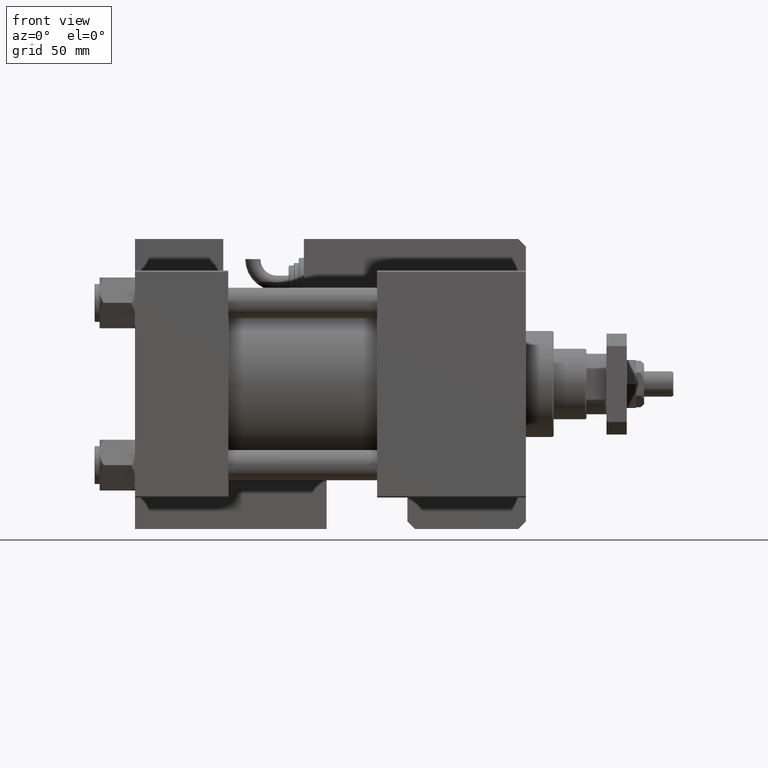
[diagram: clean part render]
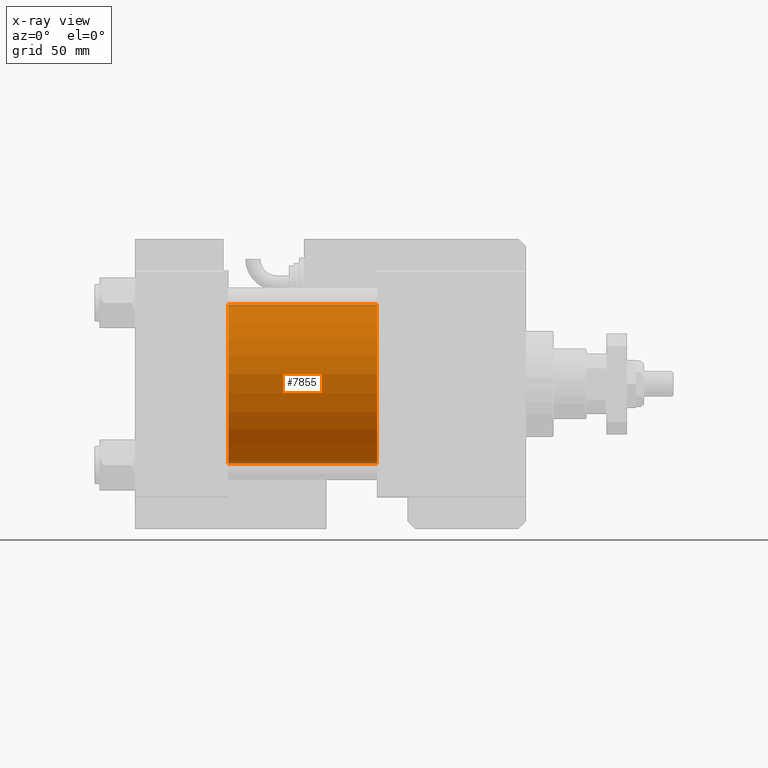
[diagram: x-ray — body ghosted, one internal face saturated and labeled with its STEP entity id]
A machine part, front view, then the same camera in x-ray: the body is ghosted and one INTERNAL B-rep face — a face not visible from any outside direction — is saturated and labeled: STEP entity #7855.
In plain terms, the highlighted cylindrical surface (partial cylindrical patch) has radius 31.5 mm, axis along (-1, -0, -0).
Its self-contained STEP definition (entity closure, byte-faithful):
#4995 = CARTESIAN_POINT ( 'NONE',  ( 96.00000000000000000, 1.255552203348951850E-15, -31.50000000000000000 ) ) ;
#5355 = DIRECTION ( 'NONE',  ( -1.000000000000000000, -0.000000000000000000, -0.000000000000000000 ) ) ;
#5761 = VERTEX_POINT ( 'NONE', #11695 ) ;
#6424 = ORIENTED_EDGE ( 'NONE', *, *, #13317, .T. ) ;
#6811 = AXIS2_PLACEMENT_3D ( 'NONE', #34180, #55706, #43519 ) ;
#7855 = ADVANCED_FACE ( 'NONE', ( #35309 ), #34753, .F. ) ;
#8113 = DIRECTION ( 'NONE',  ( 1.000000000000000000, 0.000000000000000000, 0.000000000000000000 ) ) ;
#8156 = EDGE_CURVE ( 'NONE', #53467, #25747, #49170, .T. ) ;
#8751 = CARTESIAN_POINT ( 'NONE',  ( 37.00000000000000000, -2.602085213965210642E-15, 31.50000000000000000 ) ) ;
#10133 = DIRECTION ( 'NONE',  ( -1.000000000000000000, -0.000000000000000000, -0.000000000000000000 ) ) ;
#11695 = CARTESIAN_POINT ( 'NONE',  ( 37.00000000000000000, 1.255552203348951850E-15, -31.50000000000000000 ) ) ;
#12049 = ORIENTED_EDGE ( 'NONE', *, *, #8156, .T. ) ;
#12623 = DIRECTION ( 'NONE',  ( -1.000000000000000000, -0.000000000000000000, -0.000000000000000000 ) ) ;
#12663 = EDGE_LOOP ( 'NONE', ( #12049, #6424, #17432, #52263 ) ) ;
#13317 = EDGE_CURVE ( 'NONE', #25747, #5761, #17160, .T. ) ;
#13996 = VERTEX_POINT ( 'NONE', #8751 ) ;
#14106 = EDGE_CURVE ( 'NONE', #53467, #13996, #44103, .T. ) ;
#17160 = LINE ( 'NONE', #4995, #50301 ) ;
#17432 = ORIENTED_EDGE ( 'NONE', *, *, #52513, .F. ) ;
#18337 = DIRECTION ( 'NONE',  ( 0.000000000000000000, 0.000000000000000000, 1.000000000000000000 ) ) ;
#25362 = DIRECTION ( 'NONE',  ( 0.000000000000000000, 0.000000000000000000, -1.000000000000000000 ) ) ;
#25747 = VERTEX_POINT ( 'NONE', #26700 ) ;
#26700 = CARTESIAN_POINT ( 'NONE',  ( 96.00000000000000000, 1.255552203348951850E-15, -31.50000000000000000 ) ) ;
#29309 = AXIS2_PLACEMENT_3D ( 'NONE', #31633, #10133, #18337 ) ;
#29422 = CIRCLE ( 'NONE', #6811, 31.50000000000000000 ) ;
#30189 = AXIS2_PLACEMENT_3D ( 'NONE', #51687, #8113, #25362 ) ;
#30459 = VECTOR ( 'NONE', #5355, 1000.000000000000000 ) ;
#31633 = CARTESIAN_POINT ( 'NONE',  ( 96.00000000000000000, -2.602085213965210642E-15, 0.000000000000000000 ) ) ;
#34180 = CARTESIAN_POINT ( 'NONE',  ( 37.00000000000000000, -2.602085213965210642E-15, 0.000000000000000000 ) ) ;
#34753 = CYLINDRICAL_SURFACE ( 'NONE', #29309, 31.50000000000000000 ) ;
#35021 = CARTESIAN_POINT ( 'NONE',  ( 96.00000000000000000, -2.602085213965210642E-15, 31.50000000000000000 ) ) ;
#35309 = FACE_OUTER_BOUND ( 'NONE', #12663, .T. ) ;
#39298 = CARTESIAN_POINT ( 'NONE',  ( 96.00000000000000000, -2.602085213965210642E-15, 31.50000000000000000 ) ) ;
#43519 = DIRECTION ( 'NONE',  ( 0.000000000000000000, 0.000000000000000000, -1.000000000000000000 ) ) ;
#44103 = LINE ( 'NONE', #39298, #30459 ) ;
#49170 = CIRCLE ( 'NONE', #30189, 31.50000000000000000 ) ;
#50301 = VECTOR ( 'NONE', #12623, 1000.000000000000000 ) ;
#51687 = CARTESIAN_POINT ( 'NONE',  ( 96.00000000000000000, -2.602085213965210642E-15, 0.000000000000000000 ) ) ;
#52263 = ORIENTED_EDGE ( 'NONE', *, *, #14106, .F. ) ;
#52513 = EDGE_CURVE ( 'NONE', #13996, #5761, #29422, .T. ) ;
#53467 = VERTEX_POINT ( 'NONE', #35021 ) ;
#55706 = DIRECTION ( 'NONE',  ( 1.000000000000000000, 0.000000000000000000, 0.000000000000000000 ) ) ;